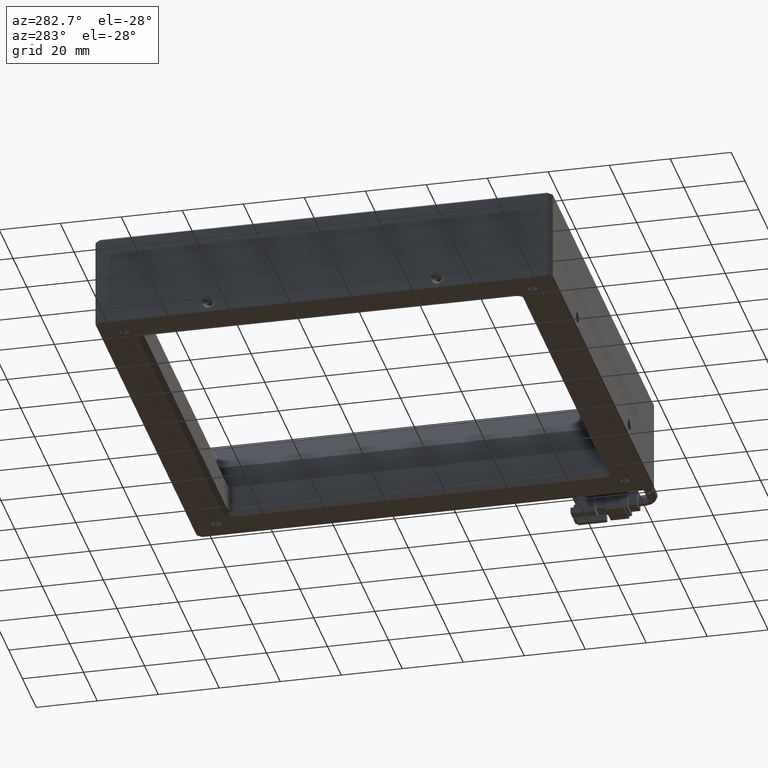
[diagram: clean part render]
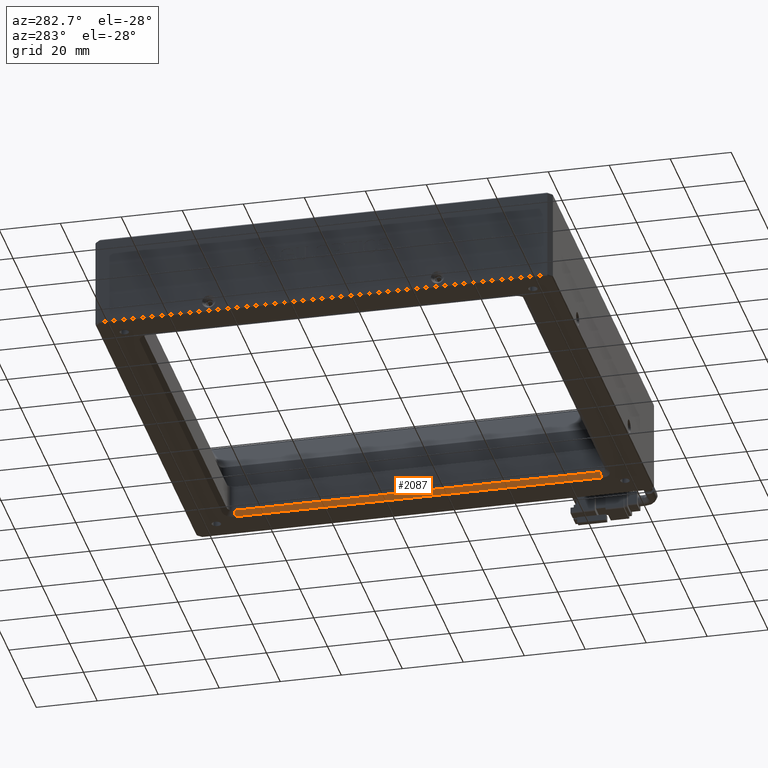
[diagram: same view with one face highlighted and labeled with its STEP entity id]
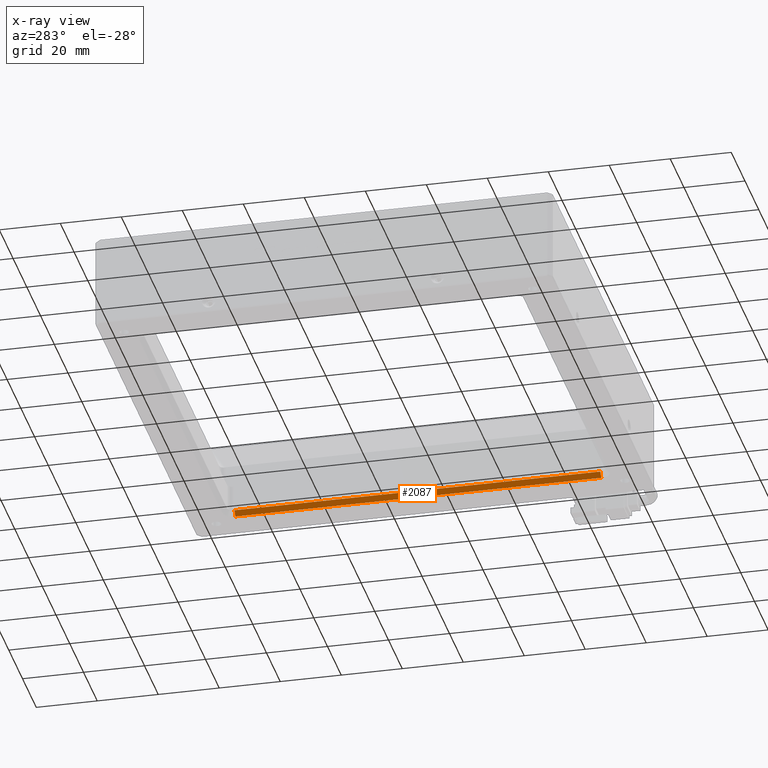
[diagram: x-ray of the same camera — body ghosted, the highlighted face saturated]
A machine part, auxiliary view. The second image highlights one B-rep face of the part: STEP entity #2087.
The next image is the same camera in x-ray: the body ghosted, the highlighted face saturated — about 0% of this face is hidden behind the body in this view.
In plain terms, the highlighted planar face has unit normal (0.7071, 0, 0.7071).
Its self-contained STEP definition (entity closure, byte-faithful):
#209 = PLANE ( 'NONE',  #10014 ) ;
#1820 = VERTEX_POINT ( 'NONE', #10926 ) ;
#1917 = DIRECTION ( 'NONE',  ( 0.7071067811865474600, 0.0000000000000000000, -0.7071067811865474600 ) ) ;
#2087 = ADVANCED_FACE ( 'NONE', ( #15840 ), #209, .F. ) ;
#2198 = CARTESIAN_POINT ( 'NONE',  ( 52.16824938067718200, -49.25061932287372500, -3.499999999999937800 ) ) ;
#2325 = LINE ( 'NONE', #17411, #6548 ) ;
#3199 = CARTESIAN_POINT ( 'NONE',  ( 52.16824938067718200, 72.74938067712632500, -3.499999999999937800 ) ) ;
#3342 = DIRECTION ( 'NONE',  ( 0.7071067811865475700, 0.0000000000000000000, 0.7071067811865475700 ) ) ;
#3419 = DIRECTION ( 'NONE',  ( 0.7071067811865474600, 0.0000000000000000000, -0.7071067811865474600 ) ) ;
#3517 = LINE ( 'NONE', #2198, #19270 ) ;
#3897 = VERTEX_POINT ( 'NONE', #18376 ) ;
#4685 = EDGE_CURVE ( 'NONE', #20146, #3897, #3517, .T. ) ;
#4795 = ORIENTED_EDGE ( 'NONE', *, *, #4685, .F. ) ;
#5223 = VECTOR ( 'NONE', #9003, 1000.000000000000000 ) ;
#6421 = DIRECTION ( 'NONE',  ( 0.7071067811865479100, 8.659560562354937800E-017, -0.7071067811865471300 ) ) ;
#6548 = VECTOR ( 'NONE', #6421, 1000.000000000000000 ) ;
#6996 = CARTESIAN_POINT ( 'NONE',  ( 52.16824938067266300, -49.25061932287372500, -3.499999999993457700 ) ) ;
#7184 = EDGE_CURVE ( 'NONE', #3897, #1820, #18731, .T. ) ;
#8666 = DIRECTION ( 'NONE',  ( 0.0000000000000000000, 1.000000000000000000, 0.0000000000000000000 ) ) ;
#8743 = ORIENTED_EDGE ( 'NONE', *, *, #14769, .T. ) ;
#8765 = CARTESIAN_POINT ( 'NONE',  ( 53.66824938067718900, -64.25061932287364600, -4.999999999999938700 ) ) ;
#9003 = DIRECTION ( 'NONE',  ( 0.0000000000000000000, -1.000000000000000000, -0.0000000000000000000 ) ) ;
#9362 = LINE ( 'NONE', #15276, #5223 ) ;
#10014 = AXIS2_PLACEMENT_3D ( 'NONE', #3199, #3342, #3419 ) ;
#10926 = CARTESIAN_POINT ( 'NONE',  ( 53.66824938066465500, 70.74938067712632500, -4.999999999996528100 ) ) ;
#12534 = VERTEX_POINT ( 'NONE', #19946 ) ;
#12675 = EDGE_LOOP ( 'NONE', ( #16201, #4795, #15964, #8743 ) ) ;
#14769 = EDGE_CURVE ( 'NONE', #12534, #1820, #2325, .T. ) ;
#15276 = CARTESIAN_POINT ( 'NONE',  ( 52.16824938067718200, 72.74938067712632500, -3.499999999999937800 ) ) ;
#15840 = FACE_OUTER_BOUND ( 'NONE', #12675, .T. ) ;
#15964 = ORIENTED_EDGE ( 'NONE', *, *, #18551, .F. ) ;
#16201 = ORIENTED_EDGE ( 'NONE', *, *, #7184, .F. ) ;
#17411 = CARTESIAN_POINT ( 'NONE',  ( 499048.6682493812400, 70.74938067718744600, -499000.0000000000000 ) ) ;
#18230 = VECTOR ( 'NONE', #8666, 1000.000000000000000 ) ;
#18376 = CARTESIAN_POINT ( 'NONE',  ( 53.66824938067490800, -49.25061932287372500, -4.999999999997665900 ) ) ;
#18551 = EDGE_CURVE ( 'NONE', #12534, #20146, #9362, .T. ) ;
#18731 = LINE ( 'NONE', #8765, #18230 ) ;
#19270 = VECTOR ( 'NONE', #1917, 1000.000000000000100 ) ;
#19946 = CARTESIAN_POINT ( 'NONE',  ( 52.16824938066774600, 70.74938067712632500, -3.499999999986978000 ) ) ;
#20146 = VERTEX_POINT ( 'NONE', #6996 ) ;